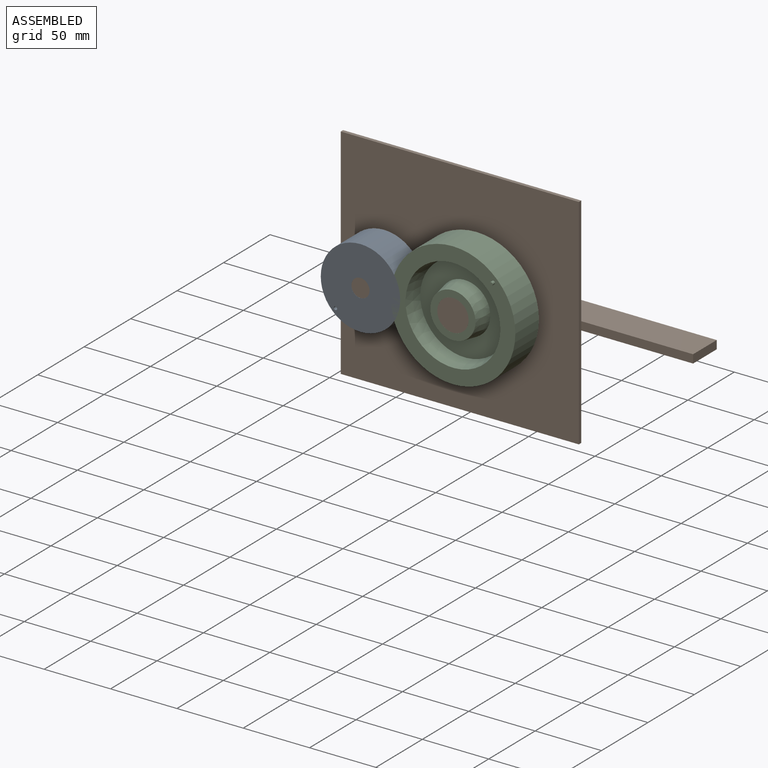
[diagram: assembled view]
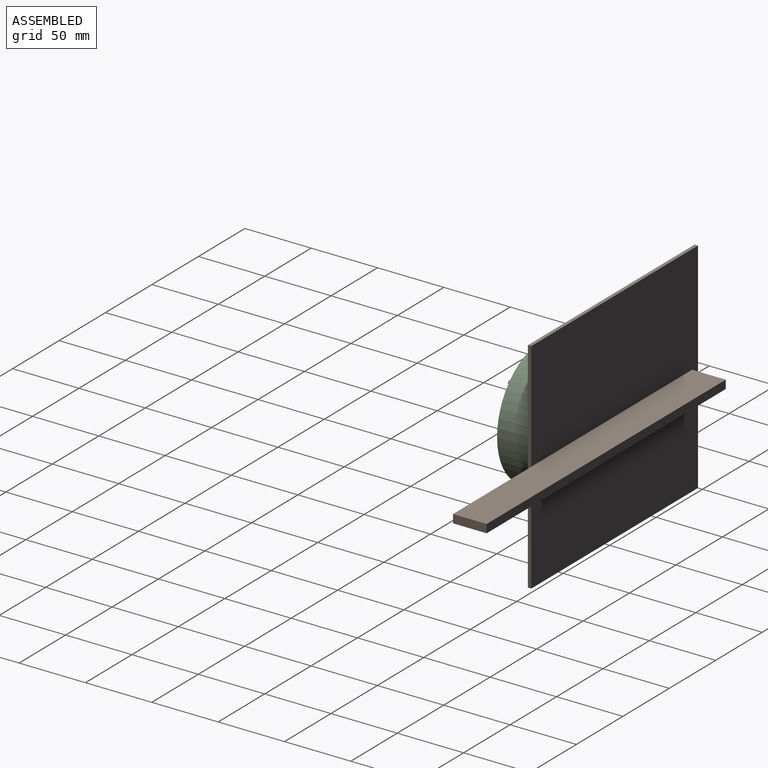
[diagram: assembled view, second angle]
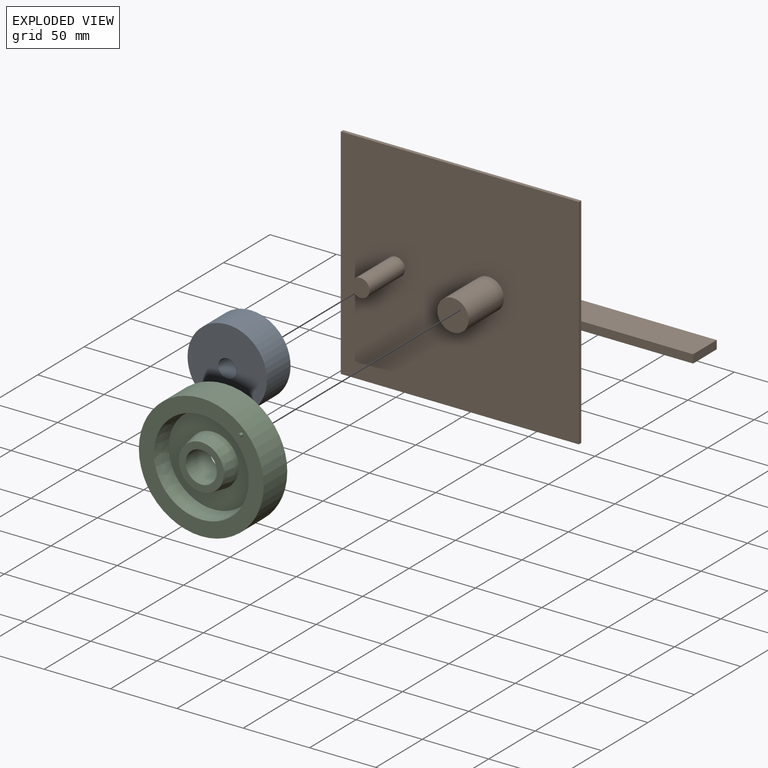
[diagram: exploded view]
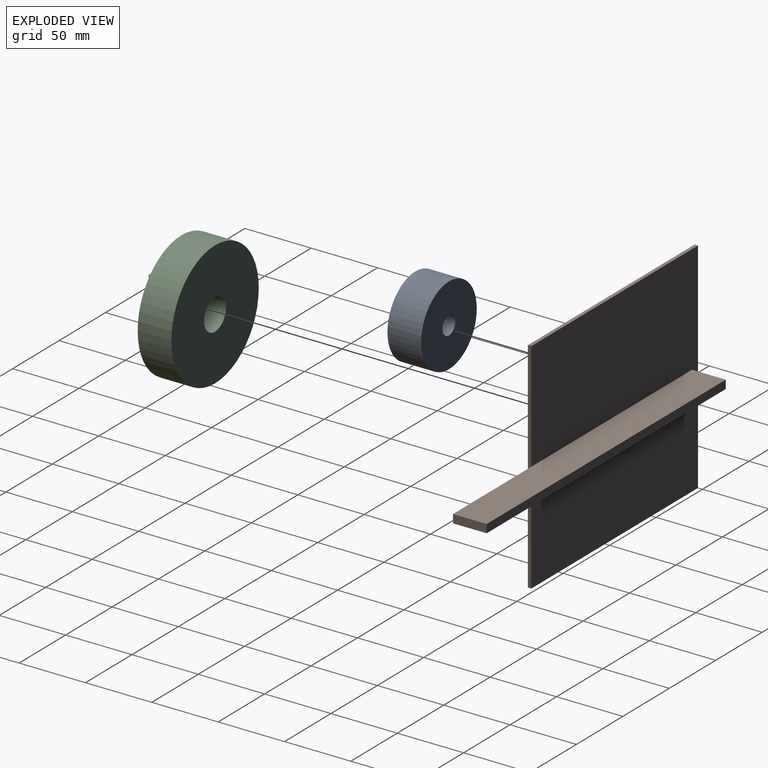
[diagram: exploded view, second angle]
ASSEMBLY  parts=3 mates=4
PART A: 6 faces, bbox 59.8x25.4x59.8 mm
  f0: cylinder r=6.85mm len=25.4mm, axis (0,1,0), area 1093.9mm2, adj f2,f3
  f1: cylinder r=29.92mm len=59.85mm, axis (0,1,0), area 4775.6mm2, adj f2,f3
  f2: plane 59.85x59.85mm, normal (0,-1,0), area 2660.3mm2, adj f0,f1,f4
  f3: plane 59.85x59.85mm, normal (0,1,0), area 2665.4mm2, adj f0,f1
  f4: cylinder r=1.27mm len=2.54mm, axis (0,-1,0), area 20.3mm2, adj f2,f5
  f5: plane 2.54x2.54mm, normal (0,-1,0), area 5.1mm2, adj f4
PART B: 16 faces, bbox 263.8x66x165.1 mm
  f0: plane 84.32x6.33mm, normal (0,-1,0), area 533.4mm2, adj f1,f6,f12,f15
  f1: plane 25.4x6.33mm, normal (1,0,0), area 160.7mm2, adj f0,f12,f14,f15
  f2: plane 179.5x165.14mm, normal (0,1,0), area 28547.7mm2, adj f3,f4,f5,f6,f12,f13,f15
  f3: plane 179.5x2.54mm, normal (0,0,1), area 455.9mm2, adj f2,f4,f6,f7
  f4: plane 165.14x2.54mm, normal (-1,0,0), area 419.5mm2, adj f2,f3,f5,f7
  f5: plane 179.5x2.54mm, normal (0,0,-1), area 455.9mm2, adj f2,f4,f6,f7
  f6: plane 165.14x2.54mm, normal (1,0,0), area 419.5mm2, adj f0,f2,f3,f5,f7
  f7: plane 179.5x165.14mm, normal (0,-1,0), area 29056.5mm2, adj f3,f4,f5,f6,f8,f10
  f8: cylinder r=11.81mm len=38.1mm, axis (0,1,0), area 2828.2mm2, adj f7,f9
  f9: plane 23.63x23.63mm, normal (0,-1,0), area 438.5mm2, adj f8
  f10: cylinder r=6.85mm len=38.1mm, axis (0,1,0), area 1640.8mm2, adj f7,f11
  f11: plane 13.71x13.71mm, normal (0,-1,0), area 147.6mm2, adj f10
  f12: plane 257.41x25.4mm, normal (0,0,-1), area 6538.2mm2, adj f0,f1,f2,f13,f14
  f13: plane 25.4x6.33mm, normal (-1,0,0), area 160.7mm2, adj f2,f12,f14,f15
  f14: plane 257.41x6.33mm, normal (0,1,0), area 1628.2mm2, adj f1,f12,f13,f15
  f15: plane 257.41x25.4mm, normal (0,0,1), area 6538.2mm2, adj f0,f1,f2,f13,f14
PART C: 10 faces, bbox 94.1x27.9x94.1 mm
  f0: plane 34.05x34.05mm, normal (0,-1,0), area 472mm2, adj f1,f5
  f1: cylinder r=11.81mm len=25.4mm, axis (0,1,0), area 1885.5mm2, adj f0,f4
  f2: cylinder r=47.04mm len=94.08mm, axis (0,1,0), area 7506.9mm2, adj f3,f4
  f3: plane 94.08x94.08mm, normal (0,-1,0), area 2929.8mm2, adj f2,f6,f8
  f4: plane 94.08x94.08mm, normal (0,1,0), area 6512.4mm2, adj f1,f2
  f5: cone r=17.02mm half-angle=10deg, axis (0,1,0), area 1470.1mm2, adj f0,f7
  f6: cone r=35.75mm half-angle=10deg, axis (0,-1,0), area 2806.3mm2, adj f3,f7
  f7: plane 67.03x67.03mm, normal (0,-1,0), area 2363mm2, adj f5,f6
  f8: cylinder r=1.27mm len=2.54mm, axis (0,1,0), area 20.3mm2, adj f3,f9
  f9: plane 2.54x2.54mm, normal (0,-1,0), area 5.1mm2, adj f8
PLACE A rot(axis=(0,-1,0),45deg) t=(-0.04,-12.7,-0.04)mm
PLACE B at identity fixed
PLACE C rot(axis=(0,-1,0),45deg) t=(20.4,-12.7,-49.26)mm
MATE planar B.f8 <-> C.f5  axis (0,-1,0) through (69.66,-38.1,0)mm
MATE planar A.f2 <-> B.f10  axis (0,-1,0) through (0,-38.1,0)mm
MATE revolute C.f1 <-> B.f8  axis (0,-1,0) through (69.66,-38.1,0)mm
MATE revolute A.f2 <-> B.f10  axis (0,-1,0) through (0,-38.1,0)mm
